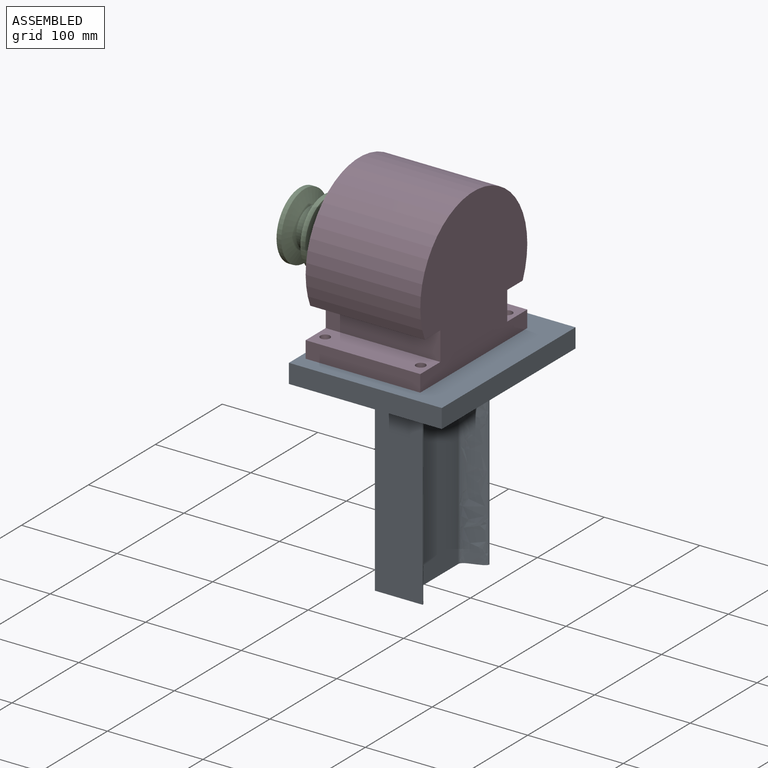
[diagram: assembled view]
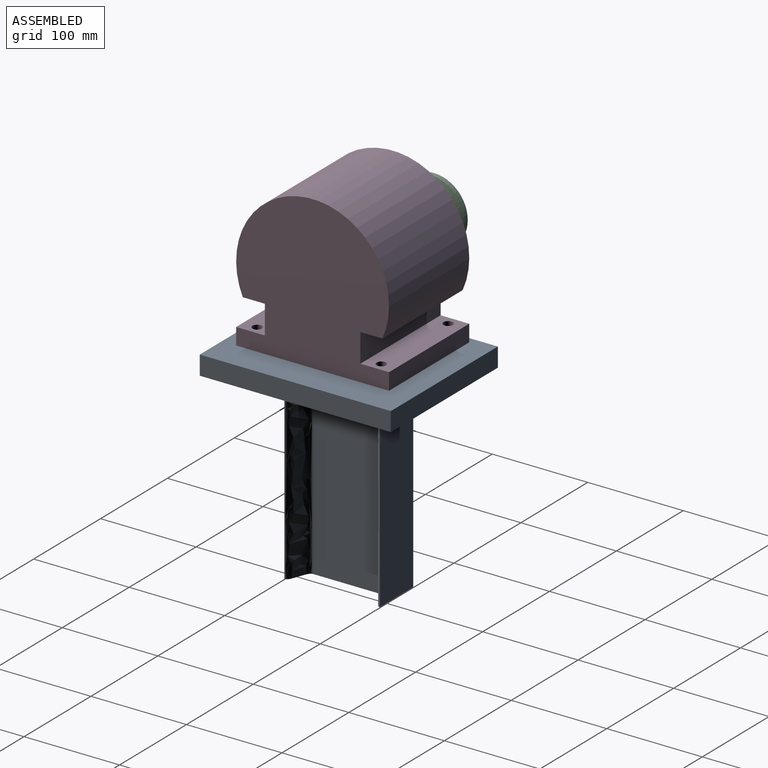
[diagram: assembled view, second angle]
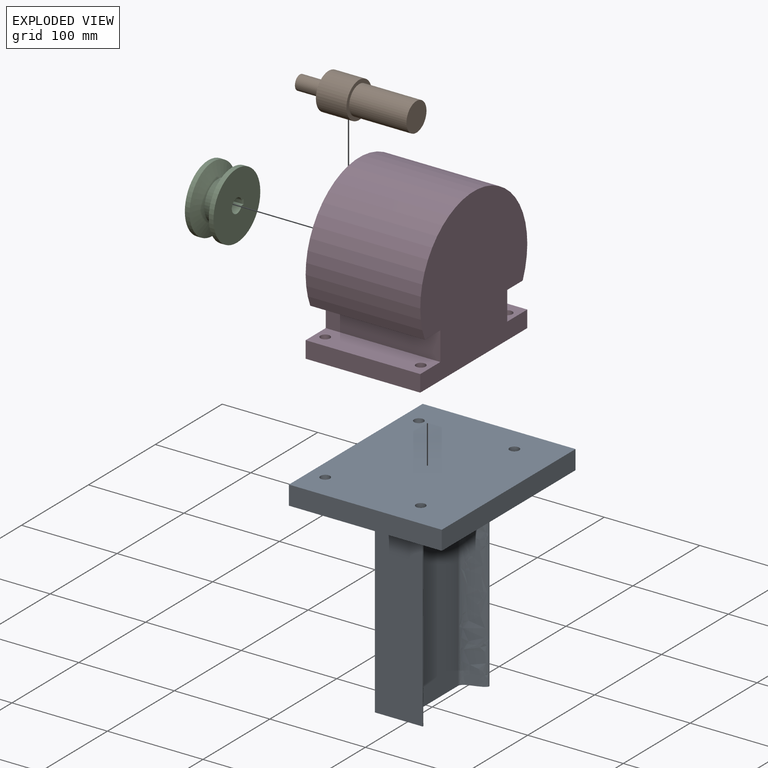
[diagram: exploded view]
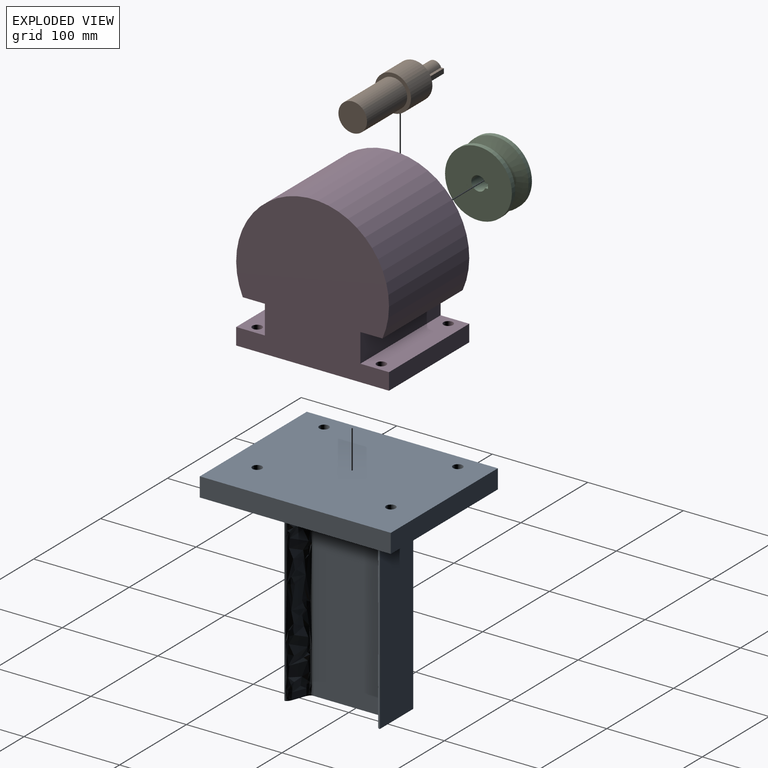
[diagram: exploded view, second angle]
ASSEMBLY  parts=4 mates=3
PART A: 19 faces, bbox 160x200x220 mm
  f0: extruded ~200x22.5mm, area 5669.6mm2, adj f1,f7,f8,f9
  f1: plane 200x50mm, normal (0,-1,0), area 10000mm2, adj f0,f2,f8,f9
  f2: extruded ~200x22.5mm, area 5669.6mm2, adj f1,f3,f8,f9
  f3: plane 200x70.75mm, normal (1,0,0), area 14150mm2, adj f2,f4,f8,f9
  f4: extruded ~200x22.5mm, area 5669.6mm2, adj f3,f5,f8,f9
  f5: plane 200x50mm, normal (0,1,0), area 10000mm2, adj f4,f6,f8,f9
  f6: extruded ~200x22.5mm, area 5669.6mm2, adj f5,f7,f8,f9
  f7: plane 200x70.75mm, normal (-1,0,0), area 14150mm2, adj f0,f6,f8,f9
  f8: plane 100x50mm, normal (0,0,-1), area 1141.3mm2, adj f0,f1,f2,f3,f4,f5,f6,f7
  f9: plane 200x160mm, normal (0,0,-1), area 30544.6mm2, adj f0,f1,f2,f3,f4,f5,f6,f7
  f10: plane 160x20mm, normal (0,1,0), area 3200mm2, adj f9,f11,f17,f18
  f11: plane 200x20mm, normal (-1,0,0), area 4000mm2, adj f9,f10,f12,f18
  f12: plane 160x20mm, normal (0,-1,0), area 3200mm2, adj f9,f11,f17,f18
  f13: cylinder r=5mm len=20mm, axis (0,0,1), area 628.3mm2, adj f9,f18
  f14: cylinder r=5mm len=20mm, axis (0,0,1), area 628.3mm2, adj f9,f18
  f15: cylinder r=5mm len=20mm, axis (0,0,1), area 628.3mm2, adj f9,f18
  f16: cylinder r=5mm len=20mm, axis (0,0,1), area 628.3mm2, adj f9,f18
  f17: plane 200x20mm, normal (1,0,0), area 4000mm2, adj f9,f10,f12,f18
  f18: plane 200x160mm, normal (0,0,1), area 31685.8mm2, adj f10,f11,f12,f13,f14,f15,f16,f17
PART B: 10 faces, bbox 122x38x38 mm
  f0: plane 17.5x15mm, normal (1,0,0), area 189.9mm2, adj f1,f7,f8,f9
  f1: cylinder r=7.5mm len=30mm, axis (1,0,0), area 1260.8mm2, adj f0,f2,f8,f9
  f2: plane 38x38mm, normal (1,0,0), area 944.2mm2, adj f1,f3,f7,f8,f9
  f3: cylinder r=19mm len=38mm, axis (1,0,0), area 3820.2mm2, adj f2,f4
  f4: plane 38x38mm, normal (-1,0,0), area 427.3mm2, adj f3,f5
  f5: cylinder r=15mm len=60mm, axis (1,0,0), area 5654.9mm2, adj f4,f6
  f6: plane 30x30mm, normal (-1,0,0), area 706.9mm2, adj f5
  f7: plane 30x5mm, normal (0,0,1), area 150mm2, adj f0,f2,f8,f9
  f8: plane 30x2.93mm, normal (0,-1,0), area 87.9mm2, adj f0,f1,f2,f7
  f9: plane 30x2.93mm, normal (0,1,0), area 87.9mm2, adj f0,f1,f2,f7
PART C: 11 faces, bbox 30x70x70 mm
  f0: plane 70x70mm, normal (-1,0,0), area 3658.5mm2, adj f6,f7,f8,f9,f10
  f1: plane 70x70mm, normal (1,0,0), area 3658.5mm2, adj f2,f7,f8,f9,f10
  f2: cylinder r=35mm len=70mm, axis (-1,0,0), area 1099.6mm2, adj f1,f3
  f3: cone r=20mm half-angle=71.6deg, axis (1,0,0), area 2732mm2, adj f2,f4
  f4: cylinder r=20mm len=40mm, axis (-1,0,0), area 1256.6mm2, adj f3,f5
  f5: cone r=35mm half-angle=71.6deg, axis (-1,0,0), area 2732mm2, adj f4,f6
  f6: cylinder r=35mm len=70mm, axis (-1,0,0), area 1099.6mm2, adj f0,f5
  f7: cylinder r=7.5mm len=30mm, axis (1,0,0), area 1260.8mm2, adj f0,f1,f8,f10
  f8: plane 30x2.93mm, normal (0,-1,0), area 87.9mm2, adj f0,f1,f7,f9
  f9: plane 30x5mm, normal (0,0,-1), area 150mm2, adj f0,f1,f8,f10
  f10: plane 30x2.93mm, normal (0,1,0), area 87.9mm2, adj f0,f1,f7,f9
PART D: 18 faces, bbox 160x120x160 mm
  f0: cylinder r=15mm len=60mm, axis (0,1,0), area 5654.9mm2, adj f12,f17
  f1: plane 120x30mm, normal (0,0,1), area 3442.9mm2, adj f2,f10,f11,f12,f15,f16
  f2: plane 120x17.55mm, normal (-1,0,0), area 2106mm2, adj f1,f3,f11,f12
  f3: plane 160x120mm, normal (0,0,-1), area 18885.8mm2, adj f2,f4,f11,f12,f13,f14,f15,f16
  f4: plane 120x17.55mm, normal (1,0,0), area 2106mm2, adj f3,f5,f11,f12
  f5: plane 120x30mm, normal (0,0,1), area 3442.9mm2, adj f4,f6,f11,f12,f13,f14
  f6: plane 120x30mm, normal (1,0,0), area 3600mm2, adj f5,f7,f11,f12
  f7: plane 120x23.12mm, normal (0,0,-1), area 2774.8mm2, adj f6,f8,f11,f12
  f8: cylinder r=80mm len=160mm, axis (0,1,0), area 38178.4mm2, adj f7,f9,f11,f12
  f9: plane 120x23.12mm, normal (0,0,-1), area 2774.8mm2, adj f8,f10,f11,f12
  f10: plane 120x30mm, normal (-1,0,0), area 3600mm2, adj f1,f9,f11,f12
  f11: plane 160x160mm, normal (0,-1,0), area 20907mm2, adj f1,f2,f3,f4,f5,f6,f7,f8
  f12: plane 160x160mm, normal (0,1,0), area 20200.1mm2, adj f0,f1,f2,f3,f4,f5,f6,f7
  f13: cylinder r=5mm len=17.55mm, axis (0,0,-1), area 551.4mm2, adj f3,f5
  f14: cylinder r=5mm len=17.55mm, axis (0,0,-1), area 551.4mm2, adj f3,f5
  f15: cylinder r=5mm len=17.55mm, axis (0,0,-1), area 551.4mm2, adj f1,f3
  f16: cylinder r=5mm len=17.55mm, axis (0,0,-1), area 551.4mm2, adj f1,f3
  f17: plane 30x30mm, normal (0,1,0), area 706.9mm2, adj f0
PLACE A at identity fixed
PLACE B rot(axis=(0,0.71,0.71),180deg) t=(-73,-5,80)mm
PLACE C rot(axis=(0,0.71,0.71),180deg) t=(-120,-105,80)mm
PLACE D rot(axis=(0,0,1),90deg) t=(-13,-5,0)mm
MATE fastened C.f9 <-> B.f7  axis (0,-1,0) through (-105,5,80)mm
MATE revolute B.f1 <-> D.f0  axis (-1,0,0) through (-73,-5,80)mm
MATE fastened D.f15 <-> A.f15  axis (0,0,-1) through (37,-70,0)mm
